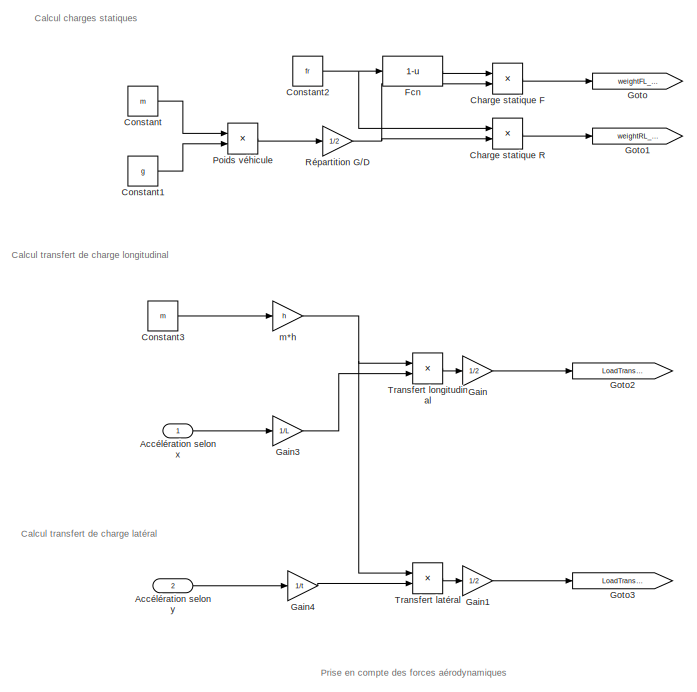
[diagram: root canvas - part 1/2, top center region]
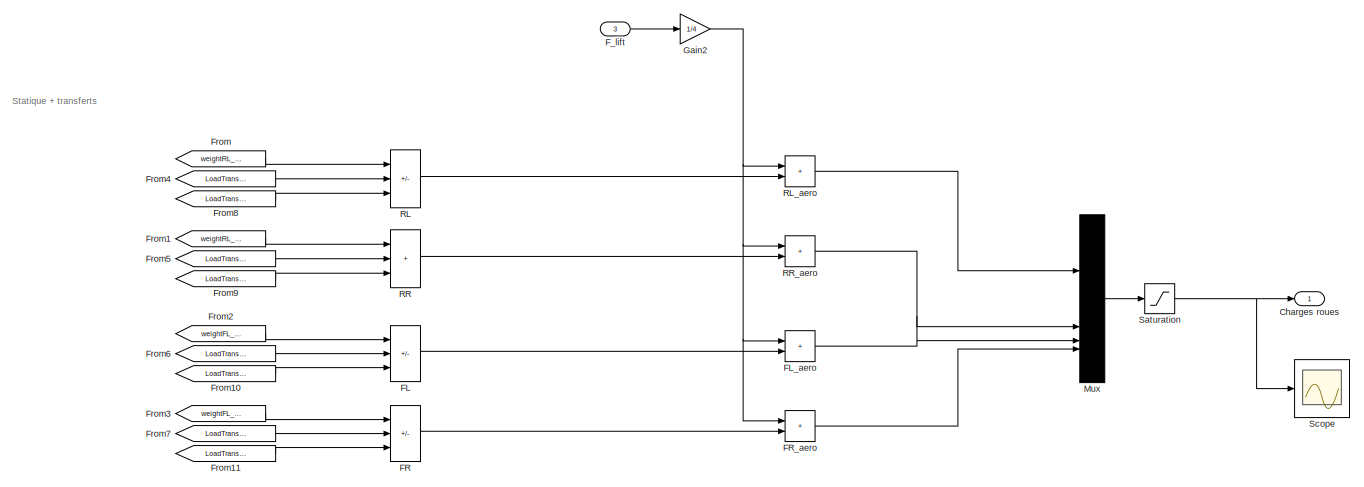
[diagram: root canvas - part 2/2, full width, bottom band]
MODEL slx_2a808eae4aac
KIND model
CONFIG AbsTol = auto
CONFIG EnableMultiTasking = off
CONFIG FixedStep = Ts
CONFIG MaxStep = 0.001
CONFIG MinStep = auto
CONFIG RelTol = 1e-3
CONFIG SampleTimeConstraint = Unconstrained
CONFIG SolverName = FixedStepAuto
CONFIG StartTime = 0.0
CONFIG StopTime = 10.0
BLOCK [Inport] Accélération selon x
BLOCK [Inport] Accélération selon y
  Port = 2
BLOCK [Product] Charge statique F
BLOCK [Product] Charge statique R
BLOCK [Outport] Charges roues
BLOCK [Constant] Constant
  Value = m
BLOCK [Constant] Constant1
  Value = g
BLOCK [Constant] Constant2
  Value = fr
BLOCK [Constant] Constant3
  Value = m
BLOCK [Sum] FL
  IconShape = rectangular
  Inputs = +--
BLOCK [Sum] FL_aero
  IconShape = rectangular
BLOCK [Sum] FR
  IconShape = rectangular
  Inputs = +-+
BLOCK [Sum] FR_aero
  IconShape = rectangular
BLOCK [Inport] F_lift
  Port = 3
BLOCK [Fcn] Fcn
  Expr = 1-u
BLOCK [From] From
  GotoTag = weightRL_RR
BLOCK [From] From1
  GotoTag = weightRL_RR
BLOCK [From] From10
  GotoTag = LoadTransferRight
BLOCK [From] From11
  GotoTag = LoadTransferRight
BLOCK [From] From2
  GotoTag = weightFL_FR
BLOCK [From] From3
  GotoTag = weightFL_FR
BLOCK [From] From4
  GotoTag = LoadTransferRear
BLOCK [From] From5
  GotoTag = LoadTransferRear
BLOCK [From] From6
  GotoTag = LoadTransferRear
BLOCK [From] From7
  GotoTag = LoadTransferRear
BLOCK [From] From8
  GotoTag = LoadTransferRight
BLOCK [From] From9
  GotoTag = LoadTransferRight
BLOCK [Gain] Gain
  Gain = 1/2
BLOCK [Gain] Gain1
  Gain = 1/2
BLOCK [Gain] Gain2
  Gain = 1/4
BLOCK [Gain] Gain3
  Gain = 1/L
BLOCK [Gain] Gain4
  Gain = 1/t
BLOCK [Goto] Goto
  GotoTag = weightFL_FR
BLOCK [Goto] Goto1
  GotoTag = weightRL_RR
BLOCK [Goto] Goto2
  GotoTag = LoadTransferRear
BLOCK [Goto] Goto3
  GotoTag = LoadTransferRight
BLOCK [Mux] Mux
  DisplayOption = bar
BLOCK [Product] Poids véhicule
BLOCK [Sum] RL
  IconShape = rectangular
  Inputs = ++-
BLOCK [Sum] RL_aero
  IconShape = rectangular
BLOCK [Sum] RR
  IconShape = rectangular
  Inputs = +++
BLOCK [Sum] RR_aero
  IconShape = rectangular
BLOCK [Gain] Répartition G//D
  Gain = 1/2
BLOCK [Saturate] Saturation
  LowerLimit = 30
  UpperLimit = m*g
BLOCK [Scope] Scope
  Floating = off
  NumInputPorts = 1
  ScopeSpecificationString = Simulink.scopes.TimeScopeBlockCfg('CurrentConfiguration', extmgr.ConfigurationSet(extmgr.Configuration('Core','General UI',true),extmgr.Configuration('Core','Source UI',true),extmgr.Configuration('Sources','WiredSimulink',true),extmgr.Configuration('Visuals','Time Domain',true,'SerializedDisplays',{struct('MinYLimReal','-337.21875','MaxYLimReal','3034.96875','YLabelReal','','MinYLimMag',' 0.00000'...<+1530ch>
BLOCK [Product] Transfert latéral
BLOCK [Product] Transfert longitudinal
BLOCK [Gain] m*h
  Gain = h
ANNOTATION (root): Calcul charges statiques
ANNOTATION (root): Calcul transfert de charge latéral
ANNOTATION (root): Calcul transfert de charge longitudinal
ANNOTATION (root): Prise en compte des forces aérodynamiques
ANNOTATION (root): Statique + transferts
LINE Accélération selon x:1 -> Gain3:1
LINE Accélération selon y:1 -> Gain4:1
LINE Charge statique F:1 -> Goto:1
LINE Charge statique R:1 -> Goto1:1
LINE Constant1:1 -> Poids véhicule:2
NET Constant2:1 -> Charge statique R:1, Fcn:1
LINE Constant3:1 -> m*h:1
LINE Constant:1 -> Poids véhicule:1
LINE FL:1 -> FL_aero:2
LINE FL_aero:1 -> Mux:3
LINE FR:1 -> FR_aero:2
LINE FR_aero:1 -> Mux:4
LINE F_lift:1 -> Gain2:1
LINE Fcn:1 -> Charge statique F:1
LINE From10:1 -> FL:3
LINE From11:1 -> FR:3
LINE From1:1 -> RR:1
LINE From2:1 -> FL:1
LINE From3:1 -> FR:1
LINE From4:1 -> RL:2
LINE From5:1 -> RR:2
LINE From6:1 -> FL:2
LINE From7:1 -> FR:2
LINE From8:1 -> RL:3
LINE From9:1 -> RR:3
LINE From:1 -> RL:1
LINE Gain1:1 -> Goto3:1
NET Gain2:1 -> FL_aero:1, FR_aero:1, RL_aero:1, RR_aero:1
LINE Gain3:1 -> Transfert longitudinal:2
LINE Gain4:1 -> Transfert latéral:2
LINE Gain:1 -> Goto2:1
LINE Mux:1 -> Saturation:1
LINE Poids véhicule:1 -> Répartition G//D:1
LINE RL:1 -> RL_aero:2
LINE RL_aero:1 -> Mux:1
LINE RR:1 -> RR_aero:2
LINE RR_aero:1 -> Mux:2
NET Répartition G//D:1 -> Charge statique F:2, Charge statique R:2
NET Saturation:1 -> Charges roues:1, Scope:1
LINE Transfert latéral:1 -> Gain1:1
LINE Transfert longitudinal:1 -> Gain:1
NET m*h:1 -> Transfert latéral:1, Transfert longitudinal:1
note: NET lines group one-source signal fan-out (src -> all destinations, sorted); 1:1 wires keep LINE
